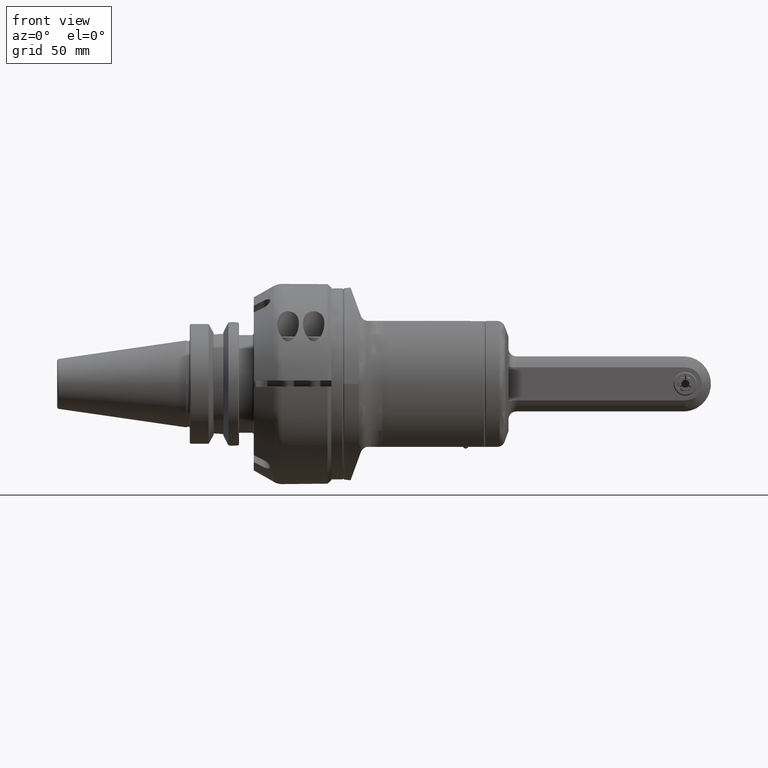
[diagram: clean part render]
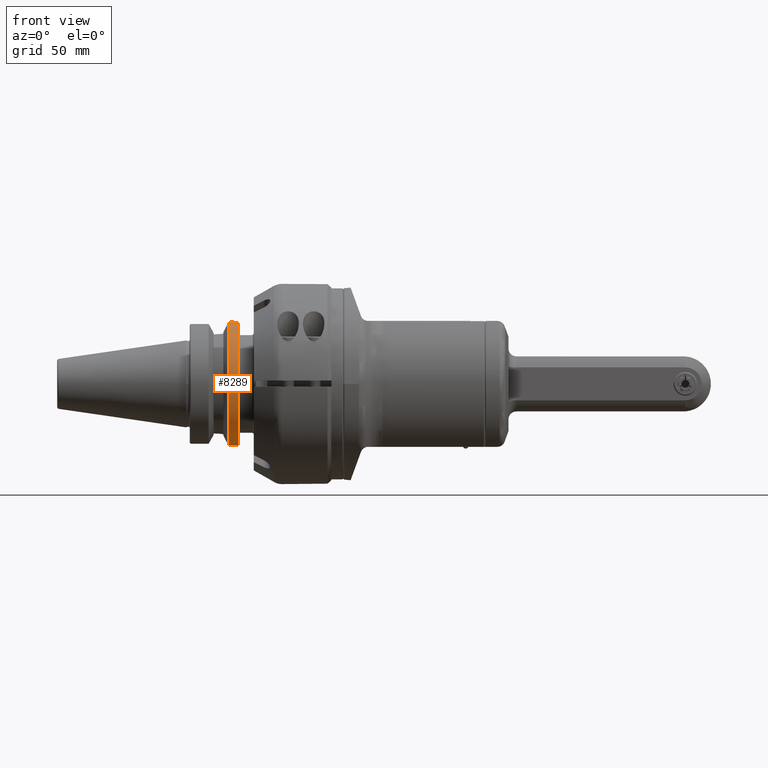
[diagram: same view with one face highlighted and labeled with its STEP entity id]
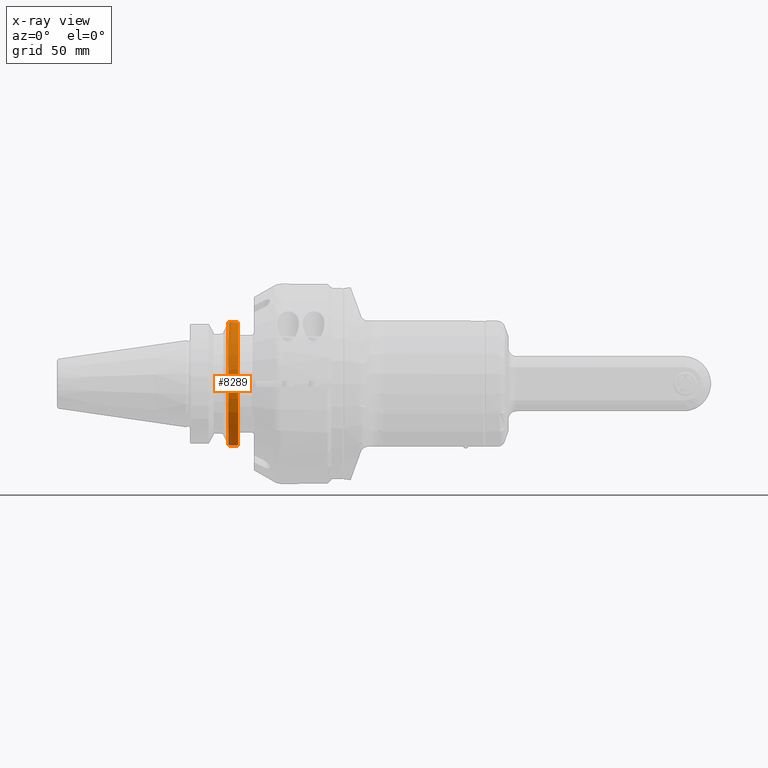
[diagram: x-ray of the same camera — body ghosted, the highlighted face saturated]
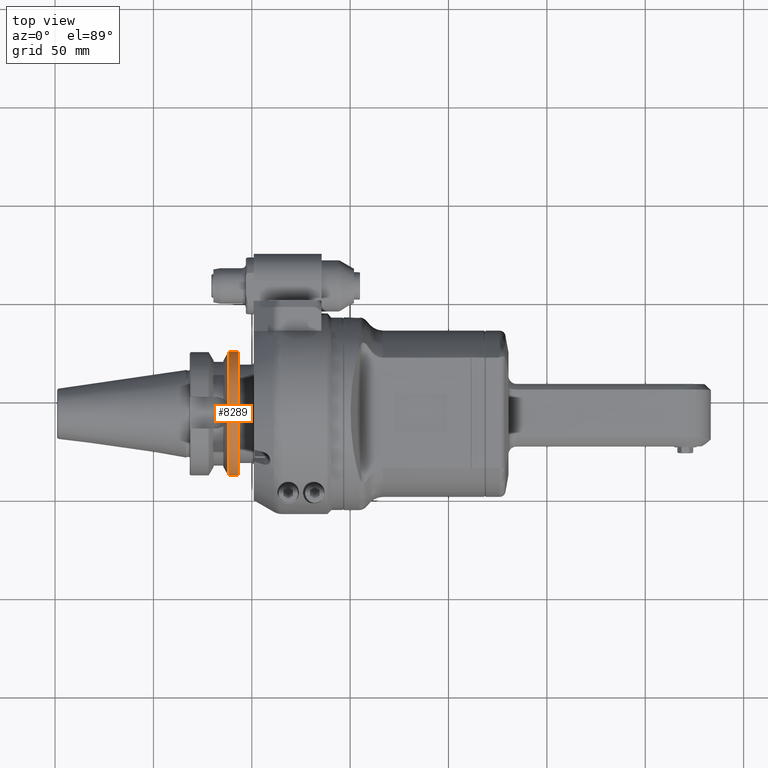
[diagram: same view with one face highlighted and labeled with its STEP entity id]
A machine part, front view. The second image highlights one B-rep face of the part: STEP entity #8289.
The next image is the same camera in x-ray: the body ghosted, the highlighted face saturated — about 0% of this face is hidden behind the body in this view.
A second angle (top view) of the same face is appended — the face is thin or edge-on in the first view.
In plain terms, the highlighted cylindrical surface (bore or boss wall) has radius 31.5 mm, axis along (1, 0, 0).
Its self-contained STEP definition (entity closure, byte-faithful):
#987=FACE_OUTER_BOUND('',#1526,.T.);
#1526=EDGE_LOOP('',(#7332,#7333,#7334,#7335,#7336,#7337,#7338,#7339,#7340));
#1758=B_SPLINE_CURVE_WITH_KNOTS('',3,(#44688,#44689,#44690,#44691,#44692,
#44693,#44694,#44695,#44696,#44697,#44698,#44699,#44700,#44701,#44702,#44703,
#44704,#44705,#44706,#44707,#44708,#44709,#44710,#44711,#44712),
 .UNSPECIFIED.,.F.,.F.,(4,1,1,1,1,1,1,1,1,1,1,1,1,1,1,1,1,1,1,1,1,1,4),
(0.,0.01538446116642,0.06425885863797,0.1131365481501,0.1615302954081,0.2099265557155,
0.2583234578997,0.3067221420552,0.3551116302768,0.4035021768542,0.4518927209899,
0.5002836144356,0.548674319317,0.597064670757,0.6454550242434,0.6938443151081,
0.7422428180867,0.7906395346359,0.8390356053043,0.8874291583609,0.9363092626463,
0.9851860700101,1.),.UNSPECIFIED.);
#1767=B_SPLINE_CURVE_WITH_KNOTS('',3,(#45058,#45059,#45060,#45061,#45062,
#45063,#45064,#45065,#45066,#45067,#45068,#45069,#45070,#45071,#45072,#45073,
#45074,#45075,#45076,#45077,#45078,#45079,#45080,#45081,#45082),
 .UNSPECIFIED.,.F.,.F.,(4,1,1,1,1,1,1,1,1,1,1,1,1,1,1,1,1,1,1,1,1,1,4),
(0.,0.01538385319469,0.06425825323323,0.1131359453171,0.1615296923631,0.2099259524631,
0.2583228544438,0.3067215384004,0.3551110264057,0.4035015727712,0.4518921166954,
0.500283009934,0.5486737150126,0.597064066654,0.6454544203423,0.6938437114133,
0.7422422145809,0.7906389313236,0.8390350021895,0.8874285554481,0.9363086571553,
0.9851854619456,1.),.UNSPECIFIED.);
#2260=LINE('',#45108,#2840);
#2840=VECTOR('',#11197,31.5);
#3221=CIRCLE('',#9116,31.5);
#3222=CIRCLE('',#9117,31.5);
#3231=CIRCLE('',#9137,31.5);
#3232=CIRCLE('',#9140,31.5);
#3233=CIRCLE('',#9141,31.5);
#3943=VERTEX_POINT('',#44670);
#3944=VERTEX_POINT('',#44687);
#3945=VERTEX_POINT('',#44730);
#3946=VERTEX_POINT('',#44732);
#3963=VERTEX_POINT('',#45057);
#3964=VERTEX_POINT('',#45104);
#3965=VERTEX_POINT('',#45105);
#5077=EDGE_CURVE('',#3944,#3943,#1758,.T.);
#5079=EDGE_CURVE('',#3944,#3945,#3221,.T.);
#5080=EDGE_CURVE('',#3945,#3946,#3222,.T.);
#5110=EDGE_CURVE('',#3963,#3946,#1767,.T.);
#5113=EDGE_CURVE('',#3963,#3943,#3231,.T.);
#5114=EDGE_CURVE('',#3964,#3965,#3232,.T.);
#5115=EDGE_CURVE('',#3965,#3964,#3233,.T.);
#5116=EDGE_CURVE('',#3965,#3945,#2260,.T.);
#7332=ORIENTED_EDGE('',*,*,#5114,.F.);
#7333=ORIENTED_EDGE('',*,*,#5115,.F.);
#7334=ORIENTED_EDGE('',*,*,#5116,.T.);
#7335=ORIENTED_EDGE('',*,*,#5079,.F.);
#7336=ORIENTED_EDGE('',*,*,#5077,.T.);
#7337=ORIENTED_EDGE('',*,*,#5113,.F.);
#7338=ORIENTED_EDGE('',*,*,#5110,.T.);
#7339=ORIENTED_EDGE('',*,*,#5080,.F.);
#7340=ORIENTED_EDGE('',*,*,#5116,.F.);
#7874=CYLINDRICAL_SURFACE('',#9139,31.5);
#8289=ADVANCED_FACE('',(#987),#7874,.T.);
#9116=AXIS2_PLACEMENT_3D('',#44731,#11132,#11133);
#9117=AXIS2_PLACEMENT_3D('',#44733,#11134,#11135);
#9137=AXIS2_PLACEMENT_3D('',#45101,#11187,#11188);
#9139=AXIS2_PLACEMENT_3D('',#45103,#11191,#11192);
#9140=AXIS2_PLACEMENT_3D('',#45106,#11193,#11194);
#9141=AXIS2_PLACEMENT_3D('',#45107,#11195,#11196);
#11132=DIRECTION('center_axis',(-1.,0.,0.));
#11133=DIRECTION('ref_axis',(0.,1.,0.));
#11134=DIRECTION('center_axis',(-1.,0.,0.));
#11135=DIRECTION('ref_axis',(0.,1.,0.));
#11187=DIRECTION('center_axis',(-1.,0.,0.));
#11188=DIRECTION('ref_axis',(0.,-1.,0.));
#11191=DIRECTION('center_axis',(1.,0.,0.));
#11192=DIRECTION('ref_axis',(0.,-1.,0.));
#11193=DIRECTION('center_axis',(1.,0.,0.));
#11194=DIRECTION('ref_axis',(0.,1.,0.));
#11195=DIRECTION('center_axis',(1.,0.,0.));
#11196=DIRECTION('ref_axis',(0.,1.,0.));
#11197=DIRECTION('',(-1.,0.,0.));
#44670=CARTESIAN_POINT('',(-64.3998579127937,-4.7264916865524,31.1433825239399));
#44687=CARTESIAN_POINT('',(-64.3998579127007,4.72649170556852,31.1433825199925));
#44688=CARTESIAN_POINT('Ctrl Pts',(-64.39985772248,4.72649168964,31.14338252791));
#44689=CARTESIAN_POINT('Ctrl Pts',(-64.37019558224,4.684490975207,31.14975680662));
#44690=CARTESIAN_POINT('Ctrl Pts',(-64.24793696717,4.507863416228,31.17619977143));
#44691=CARTESIAN_POINT('Ctrl Pts',(-64.04491455821,4.188363558579,31.22127548126));
#44692=CARTESIAN_POINT('Ctrl Pts',(-63.80762769075,3.760244193274,31.27578033543));
#44693=CARTESIAN_POINT('Ctrl Pts',(-63.59677788157,3.319708689556,31.32565093047));
#44694=CARTESIAN_POINT('Ctrl Pts',(-63.41287941937,2.868419464193,31.37024587045));
#44695=CARTESIAN_POINT('Ctrl Pts',(-63.25596307351,2.406477781975,31.40910529472));
#44696=CARTESIAN_POINT('Ctrl Pts',(-63.12668620461,1.935563793282,31.44167663426));
#44697=CARTESIAN_POINT('Ctrl Pts',(-63.02559052954,1.457387386093,31.46749702761));
#44698=CARTESIAN_POINT('Ctrl Pts',(-62.95311026623,0.9737232891769,31.48619712413));
#44699=CARTESIAN_POINT('Ctrl Pts',(-62.90955996556,0.4863542717289,31.49750869104));
#44700=CARTESIAN_POINT('Ctrl Pts',(-62.89513547622,-0.002868356638279,31.50126772301));
#44701=CARTESIAN_POINT('Ctrl Pts',(-62.90990191998,-0.4920793952064,31.49741965283));
#44702=CARTESIAN_POINT('Ctrl Pts',(-62.95379236668,-0.9794137769795,31.48602040882));
#44703=CARTESIAN_POINT('Ctrl Pts',(-63.02660949939,-1.46302176717,31.46723525074));
#44704=CARTESIAN_POINT('Ctrl Pts',(-63.12803737462,-1.941121153495,31.44133361265));
#44705=CARTESIAN_POINT('Ctrl Pts',(-63.25764045306,-2.41193783355,31.40868598031));
#44706=CARTESIAN_POINT('Ctrl Pts',(-63.41487582219,-2.873762670701,31.3697562579));
#44707=CARTESIAN_POINT('Ctrl Pts',(-63.59908500884,-3.32491630822,31.32509796364));
#44708=CARTESIAN_POINT('Ctrl Pts',(-63.81024107014,-3.765305718559,31.27517070998));
#44709=CARTESIAN_POINT('Ctrl Pts',(-64.04783049113,-4.193268464141,31.22061640199));
#44710=CARTESIAN_POINT('Ctrl Pts',(-64.25005737324,-4.511025985154,31.1757363548));
#44711=CARTESIAN_POINT('Ctrl Pts',(-64.3712955588,-4.686048493554,31.14952042992));
#44712=CARTESIAN_POINT('Ctrl Pts',(-64.39985772412,-4.726491675738,31.14338253082));
#44730=CARTESIAN_POINT('',(-64.39985799368,31.5,3.85763741731416E-15));
#44731=CARTESIAN_POINT('Origin',(-64.39985799368,0.,0.));
#44732=CARTESIAN_POINT('',(-64.3998579127932,4.7264916865612,-31.1433825239399));
#44733=CARTESIAN_POINT('Origin',(-64.39985799368,0.,0.));
#45057=CARTESIAN_POINT('',(-64.3998579127001,-4.72649168881579,-31.1433825225356));
#45058=CARTESIAN_POINT('Ctrl Pts',(-64.39985772248,-4.726491689631,-31.14338252791));
#45059=CARTESIAN_POINT('Ctrl Pts',(-64.3701967544,-4.684492634943,-31.14975655473));
#45060=CARTESIAN_POINT('Ctrl Pts',(-64.24793922616,-4.507866786752,-31.17619927767));
#45061=CARTESIAN_POINT('Ctrl Pts',(-64.04491766371,-4.188368786507,-31.2212747792));
#45062=CARTESIAN_POINT('Ctrl Pts',(-63.80763047381,-3.760249588024,-31.27577968611));
#45063=CARTESIAN_POINT('Ctrl Pts',(-63.59678033825,-3.319714239925,-31.32565034158));
#45064=CARTESIAN_POINT('Ctrl Pts',(-63.41288154489,-2.868425158994,-31.3702453491));
#45065=CARTESIAN_POINT('Ctrl Pts',(-63.25596485902,-2.406483601233,-31.40910484833));
#45066=CARTESIAN_POINT('Ctrl Pts',(-63.12668764247,-1.935569716176,-31.4416762692));
#45067=CARTESIAN_POINT('Ctrl Pts',(-63.02559161336,-1.457393390999,-31.46749674916));
#45068=CARTESIAN_POINT('Ctrl Pts',(-62.95311099103,-0.9737293538048,-31.48619693635));
#45069=CARTESIAN_POINT('Ctrl Pts',(-62.90956032786,-0.4863603731959,-31.49750859671));
#45070=CARTESIAN_POINT('Ctrl Pts',(-62.89513547408,0.002862242901146,-31.50126772356));
#45071=CARTESIAN_POINT('Ctrl Pts',(-62.90990155342,0.4920732939097,-31.49741974827));
#45072=CARTESIAN_POINT('Ctrl Pts',(-62.95379163763,0.9794077126904,-31.4860205977));
#45073=CARTESIAN_POINT('Ctrl Pts',(-63.02660841134,1.463015762769,-31.46723553025));
#45074=CARTESIAN_POINT('Ctrl Pts',(-63.12803593256,1.941115231268,-31.44133397872));
#45075=CARTESIAN_POINT('Ctrl Pts',(-63.25763866336,2.411932015116,-31.40868642765));
#45076=CARTESIAN_POINT('Ctrl Pts',(-63.41487369253,2.873756976878,-31.36975678013));
#45077=CARTESIAN_POINT('Ctrl Pts',(-63.59908254806,3.324910758979,-31.32509855335));
#45078=CARTESIAN_POINT('Ctrl Pts',(-63.81023828301,3.765300325101,-31.27517136003));
#45079=CARTESIAN_POINT('Ctrl Pts',(-64.04782738157,4.19326323768,-31.22061710469));
#45080=CARTESIAN_POINT('Ctrl Pts',(-64.25005511276,4.511022614956,-31.17573684876));
#45081=CARTESIAN_POINT('Ctrl Pts',(-64.37129438646,4.686046833563,-31.14952068185));
#45082=CARTESIAN_POINT('Ctrl Pts',(-64.39985772412,4.726491675747,-31.14338253082));
#45101=CARTESIAN_POINT('Origin',(-64.39985799368,0.,0.));
#45103=CARTESIAN_POINT('Origin',(-71.5,0.,0.));
#45104=CARTESIAN_POINT('',(-59.5,-31.5,0.));
#45105=CARTESIAN_POINT('',(-59.5,31.5,3.85763741731416E-15));
#45106=CARTESIAN_POINT('Origin',(-59.5,0.,0.));
#45107=CARTESIAN_POINT('Origin',(-59.5,0.,0.));
#45108=CARTESIAN_POINT('',(-71.5,31.5,3.85763741731416E-15));